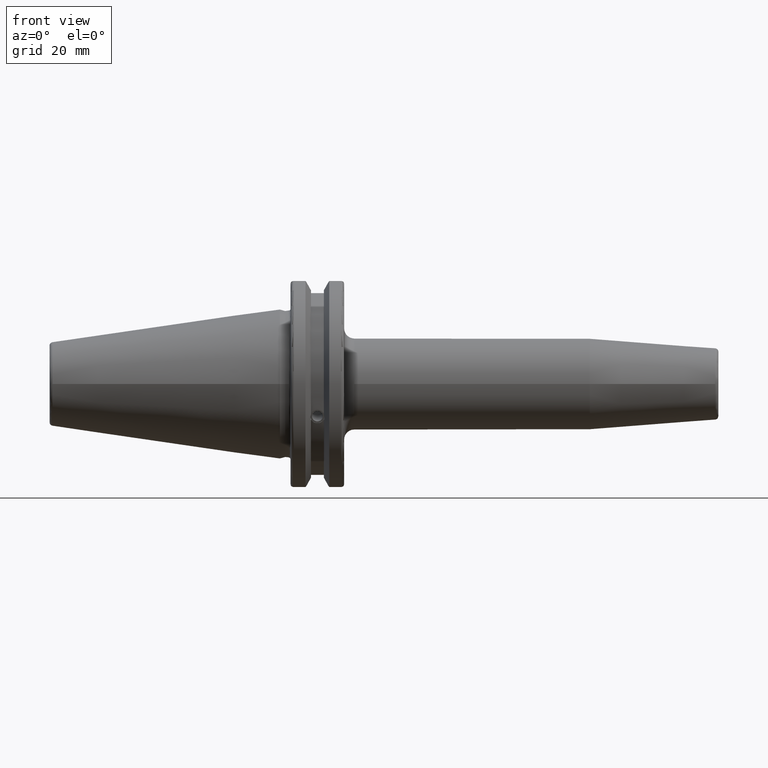
[diagram: clean part render]
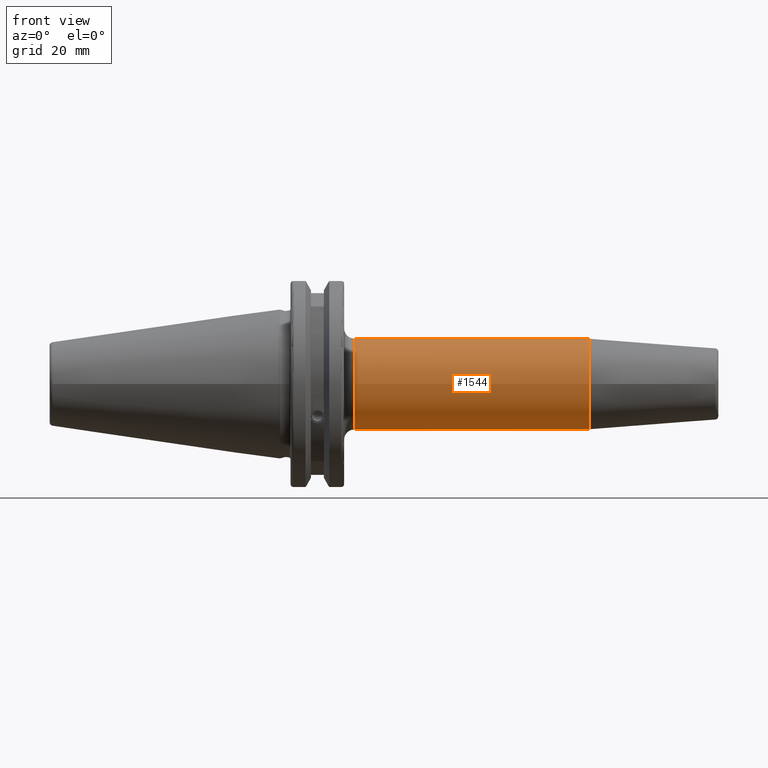
[diagram: same view with one face highlighted and labeled with its STEP entity id]
A machine part, front view. The second image highlights one B-rep face of the part: STEP entity #1544.
In plain terms, the highlighted cylindrical surface (bore or boss wall) has radius 13.5 mm, axis along (1, 0, 0).
Its self-contained STEP definition (entity closure, byte-faithful):
#146=CYLINDRICAL_SURFACE('',#1672,13.5);
#183=FACE_OUTER_BOUND('',#277,.T.);
#277=EDGE_LOOP('',(#1076,#1077,#1078,#1079,#1080));
#380=LINE('',#2351,#478);
#478=VECTOR('',#1889,13.5);
#578=CIRCLE('',#1666,13.5);
#579=CIRCLE('',#1668,13.5);
#582=CIRCLE('',#1671,13.5);
#656=VERTEX_POINT('',#2339);
#657=VERTEX_POINT('',#2343);
#658=VERTEX_POINT('',#2344);
#818=EDGE_CURVE('',#656,#656,#578,.T.);
#819=EDGE_CURVE('',#657,#658,#579,.T.);
#822=EDGE_CURVE('',#658,#657,#582,.T.);
#823=EDGE_CURVE('',#656,#657,#380,.T.);
#1076=ORIENTED_EDGE('',*,*,#818,.F.);
#1077=ORIENTED_EDGE('',*,*,#823,.T.);
#1078=ORIENTED_EDGE('',*,*,#822,.F.);
#1079=ORIENTED_EDGE('',*,*,#819,.F.);
#1080=ORIENTED_EDGE('',*,*,#823,.F.);
#1544=ADVANCED_FACE('',(#183),#146,.T.);
#1666=AXIS2_PLACEMENT_3D('',#2341,#1875,#1876);
#1668=AXIS2_PLACEMENT_3D('',#2345,#1879,#1880);
#1671=AXIS2_PLACEMENT_3D('',#2349,#1885,#1886);
#1672=AXIS2_PLACEMENT_3D('',#2350,#1887,#1888);
#1875=DIRECTION('center_axis',(1.,0.,0.));
#1876=DIRECTION('ref_axis',(0.,0.,-1.));
#1879=DIRECTION('center_axis',(-1.,0.,0.));
#1880=DIRECTION('ref_axis',(0.,-1.,-1.22464679914735E-16));
#1885=DIRECTION('center_axis',(-1.,0.,0.));
#1886=DIRECTION('ref_axis',(0.,-1.,-1.22464679914735E-16));
#1887=DIRECTION('center_axis',(1.,0.,0.));
#1888=DIRECTION('ref_axis',(0.,1.,0.));
#1889=DIRECTION('',(-1.,0.,0.));
#2339=CARTESIAN_POINT('',(91.8813857914758,-13.5,-1.65327317884893E-15));
#2341=CARTESIAN_POINT('Origin',(91.8813857914758,0.,0.));
#2343=CARTESIAN_POINT('',(22.05,-13.5,-1.65327317884893E-15));
#2344=CARTESIAN_POINT('',(22.05,-1.65327317884893E-15,-13.5));
#2345=CARTESIAN_POINT('Origin',(22.05,0.,0.));
#2349=CARTESIAN_POINT('Origin',(22.05,0.,0.));
#2350=CARTESIAN_POINT('Origin',(55.4656928957379,0.,0.));
#2351=CARTESIAN_POINT('',(55.4656928957379,-13.5,-1.65327317884893E-15));